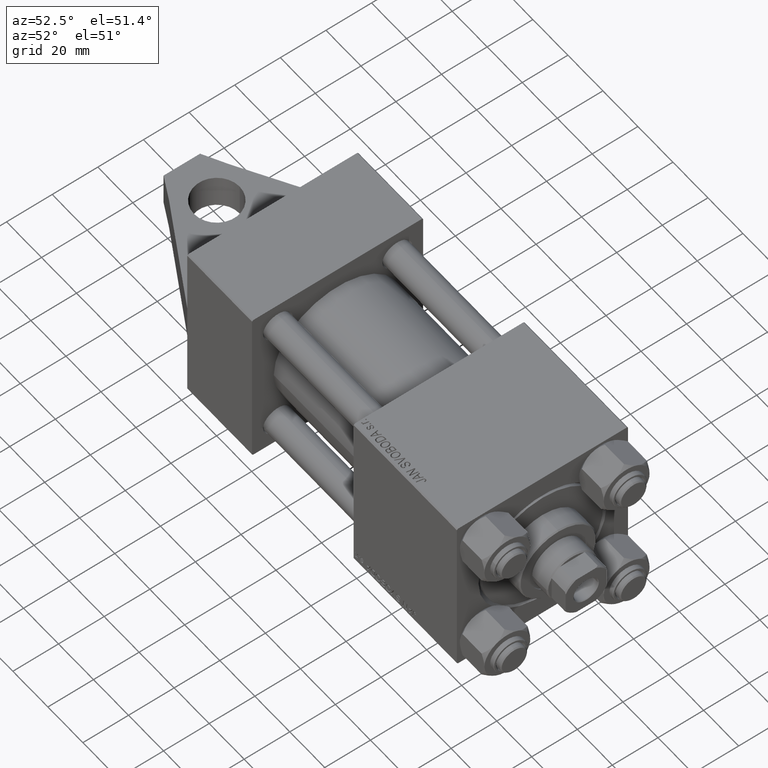
[diagram: clean part render]
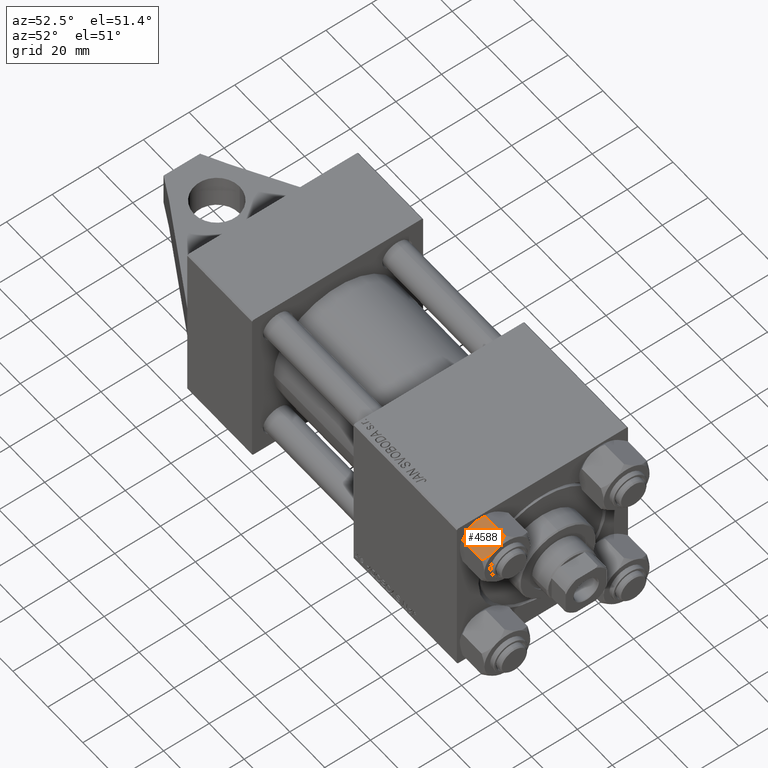
[diagram: same view with one face highlighted and labeled with its STEP entity id]
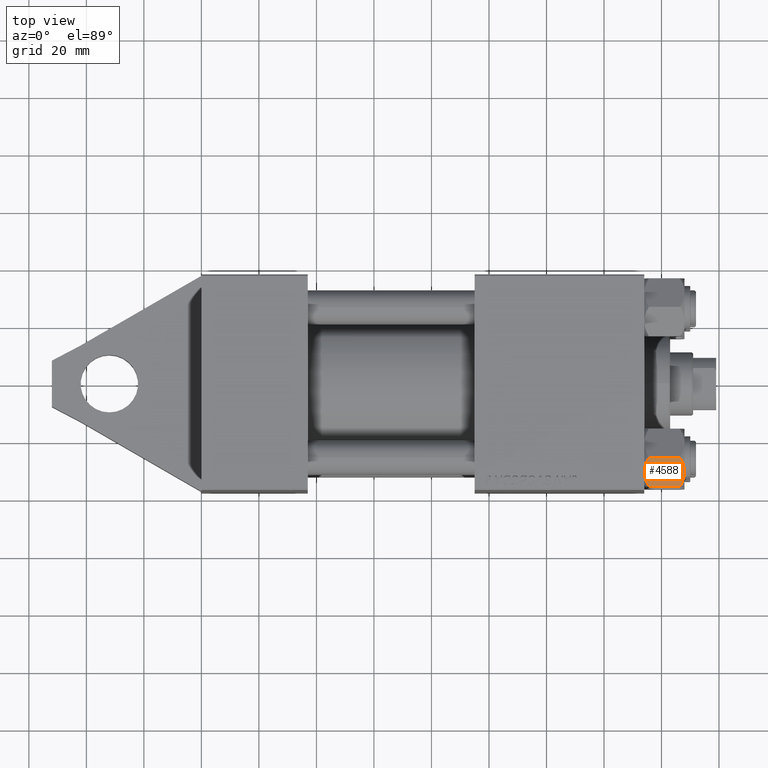
[diagram: same view with one face highlighted and labeled with its STEP entity id]
A machine part, auxiliary view. The second image highlights one B-rep face of the part: STEP entity #4588.
A second angle (top view) of the same face is appended — the face is thin or edge-on in the first view.
In plain terms, the highlighted planar face has unit normal (-0, 0.5, -0.866).
Its self-contained STEP definition (entity closure, byte-faithful):
#203 = CARTESIAN_POINT ( 'NONE',  ( 8.715000000000001634, -5.031607595987590997, 0.000000000000000000 ) ) ;
#1006 = CARTESIAN_POINT ( 'NONE',  ( 8.715000000000001634, -5.031607595987590997, -14.00000000000000000 ) ) ;
#1675 = CARTESIAN_POINT ( 'NONE',  ( 8.715000000000001634, -5.031607595987590997, 0.000000000000000000 ) ) ;
#3972 = CARTESIAN_POINT ( 'NONE',  ( 6.265018354709775750, -9.275100283241444643, -12.89823354668504507 ) ) ;
#4208 = PLANE ( 'NONE',  #35577 ) ;
#4588 = ADVANCED_FACE ( 'NONE', ( #36099 ), #4208, .F. ) ;
#5509 = CARTESIAN_POINT ( 'NONE',  ( 5.810000000000000497, -10.06321519197517667, -14.00000000000000000 ) ) ;
#5934 = CARTESIAN_POINT ( 'NONE',  ( 11.62000000000000099, -1.795242522838921761E-15, -12.44321519197518455 ) ) ;
#6708 = CARTESIAN_POINT ( 'NONE',  ( 11.62000000000000099, -1.607967606633101042E-15, -1.556784808024815669 ) ) ;
#7056 = CARTESIAN_POINT ( 'NONE',  ( 11.62000000000000099, -1.795242522838921761E-15, -12.44321519197518455 ) ) ;
#7430 = EDGE_LOOP ( 'NONE', ( #39012, #27068, #43338, #14147, #13973, #42545 ) ) ;
#8432 = EDGE_CURVE ( 'NONE', #11494, #15379, #27093, .T. ) ;
#9228 = LINE ( 'NONE', #5509, #18909 ) ;
#9671 = VERTEX_POINT ( 'NONE', #31056 ) ;
#11494 = VERTEX_POINT ( 'NONE', #1006 ) ;
#13283 = CARTESIAN_POINT ( 'NONE',  ( 5.810000000000000497, -10.06321519197517667, -1.556784808024813671 ) ) ;
#13816 = CARTESIAN_POINT ( 'NONE',  ( 11.16445427487471775, -0.7890283410877989567, -12.89876091710046424 ) ) ;
#13973 = ORIENTED_EDGE ( 'NONE', *, *, #30721, .F. ) ;
#14147 = ORIENTED_EDGE ( 'NONE', *, *, #40168, .F. ) ;
#14901 = CARTESIAN_POINT ( 'NONE',  ( 8.715000000000001634, -5.031607595987590997, -14.00000000000000000 ) ) ;
#15375 = DIRECTION ( 'NONE',  ( -0.8660254037844385966, 0.5000000000000002220, 0.000000000000000000 ) ) ;
#15379 = VERTEX_POINT ( 'NONE', #35570 ) ;
#15465 = EDGE_CURVE ( 'NONE', #43573, #9671, #45608, .T. ) ;
#18909 = VECTOR ( 'NONE', #23423, 1000.000000000000000 ) ;
#21141 = CARTESIAN_POINT ( 'NONE',  ( 9.220295946303432189, -4.156409344131454020, 1.753358200816401307E-15 ) ) ;
#23089 = CARTESIAN_POINT ( 'NONE',  ( 7.700834831386345058, -6.788193195293096949, -0.1903979688073415555 ) ) ;
#23423 = DIRECTION ( 'NONE',  ( -0.000000000000000000, -0.000000000000000000, 1.000000000000000000 ) ) ;
#24302 = CARTESIAN_POINT ( 'NONE',  ( 8.969430103550385169, -4.590921729663315354, -14.00000000000000533 ) ) ;
#24928 = CARTESIAN_POINT ( 'NONE',  ( 6.733375043383497349, -8.463882702393844326, -13.28854452935655139 ) ) ;
#25617 = CARTESIAN_POINT ( 'NONE',  ( 5.810000000000000497, -10.06321519197517667, -12.44321519197518633 ) ) ;
#25703 = VERTEX_POINT ( 'NONE', #7056 ) ;
#25891 = CARTESIAN_POINT ( 'NONE',  ( 6.265545725125283738, -9.274186850887380373, -1.101239082899531319 ) ) ;
#26125 = CARTESIAN_POINT ( 'NONE',  ( 8.202333004087901003, -5.919572880271055659, -0.03994118060690762112 ) ) ;
#26860 = CARTESIAN_POINT ( 'NONE',  ( 11.62000000000000099, -1.813166800014576593E-15, -14.00000000000000000 ) ) ;
#27068 = ORIENTED_EDGE ( 'NONE', *, *, #31129, .T. ) ;
#27093 = B_SPLINE_CURVE_WITH_KNOTS ( 'NONE', 3,
 ( #14901, #35863, #29110, #24928, #3972, #25617 ),
 .UNSPECIFIED., .F., .F.,
 ( 4, 2, 4 ),
 ( 0.006022845781655588975, 0.009013049135303635023, 0.01200325248895167674 ),
 .UNSPECIFIED. ) ;
#27113 = CARTESIAN_POINT ( 'NONE',  ( 8.715000000000001634, -5.031607595987590997, -14.00000000000000000 ) ) ;
#27568 = CARTESIAN_POINT ( 'NONE',  ( 9.974696630283194310, -2.849749030213795997, -13.69973261901326289 ) ) ;
#28014 = CARTESIAN_POINT ( 'NONE',  ( 9.729165168613654657, -3.275021996682085490, -13.80960203119266083 ) ) ;
#29110 = CARTESIAN_POINT ( 'NONE',  ( 7.713000053756304375, -6.767122412062953174, -13.84547602999601601 ) ) ;
#29580 = DIRECTION ( 'NONE',  ( -0.5000000000000001110, -0.8660254037844384856, 0.000000000000000000 ) ) ;
#30721 = EDGE_CURVE ( 'NONE', #15379, #40252, #9228, .T. ) ;
#31056 = CARTESIAN_POINT ( 'NONE',  ( 11.62000000000000099, -1.607967606633101042E-15, -1.556784808024815669 ) ) ;
#31129 = EDGE_CURVE ( 'NONE', #25703, #9671, #41066, .T. ) ;
#32072 = B_SPLINE_CURVE_WITH_KNOTS ( 'NONE', 3,
 ( #43815, #25891, #33563, #33095, #23089, #26125, #36816, #1675 ),
 .UNSPECIFIED., .F., .F.,
 ( 4, 2, 2, 4 ),
 ( 2.544312114902182352E-07, 0.003011550106433538189, 0.004517197944044561847, 0.006022845781655586372 ),
 .UNSPECIFIED. ) ;
#33068 = CARTESIAN_POINT ( 'NONE',  ( 11.62000000000000099, -1.813166800014576593E-15, -14.00000000000000000 ) ) ;
#33095 = CARTESIAN_POINT ( 'NONE',  ( 7.455303369716810735, -7.213466161761385109, -0.3002673809867383303 ) ) ;
#33563 = CARTESIAN_POINT ( 'NONE',  ( 6.731401448974986934, -8.467301068182914392, -0.7141438259524658383 ) ) ;
#33957 = CARTESIAN_POINT ( 'NONE',  ( 8.715000000000001634, -5.031607595987590997, 0.000000000000000000 ) ) ;
#34616 = VECTOR ( 'NONE', #34743, 1000.000000000000000 ) ;
#34743 = DIRECTION ( 'NONE',  ( -0.000000000000000000, -0.000000000000000000, 1.000000000000000000 ) ) ;
#34998 = CARTESIAN_POINT ( 'NONE',  ( 9.227666995912104042, -4.143642311704127223, -13.96005881939309212 ) ) ;
#35337 = CARTESIAN_POINT ( 'NONE',  ( 10.69662495661650503, -1.599332489581334560, -0.7114554706434500497 ) ) ;
#35570 = CARTESIAN_POINT ( 'NONE',  ( 5.810000000000000497, -10.06321519197517667, -12.44321519197518633 ) ) ;
#35577 = AXIS2_PLACEMENT_3D ( 'NONE', #33068, #15375, #29580 ) ;
#35632 = B_SPLINE_CURVE_WITH_KNOTS ( 'NONE', 3,
 ( #5934, #13816, #45259, #27568, #28014, #34998, #24302, #27113 ),
 .UNSPECIFIED., .F., .F.,
 ( 4, 2, 2, 4 ),
 ( 2.544312114905217906E-07, 0.003011550106433539490, 0.004517197944044564449, 0.006022845781655588975 ),
 .UNSPECIFIED. ) ;
#35863 = CARTESIAN_POINT ( 'NONE',  ( 8.209704053696569304, -5.906805847843729751, -14.00000000000000711 ) ) ;
#36099 = FACE_OUTER_BOUND ( 'NONE', #7430, .T. ) ;
#36816 = CARTESIAN_POINT ( 'NONE',  ( 8.460569896449618099, -5.472293462311865753, 1.694065894508600678E-15 ) ) ;
#38598 = CARTESIAN_POINT ( 'NONE',  ( 11.16498164529022574, -0.7881149087337310233, -1.101766453314954264 ) ) ;
#39012 = ORIENTED_EDGE ( 'NONE', *, *, #45411, .F. ) ;
#40168 = EDGE_CURVE ( 'NONE', #40252, #43573, #32072, .T. ) ;
#40252 = VERTEX_POINT ( 'NONE', #13283 ) ;
#41066 = LINE ( 'NONE', #26860, #34616 ) ;
#42094 = CARTESIAN_POINT ( 'NONE',  ( 9.716999946243698005, -3.296092779912227932, -0.1545239700039841013 ) ) ;
#42545 = ORIENTED_EDGE ( 'NONE', *, *, #8432, .F. ) ;
#43338 = ORIENTED_EDGE ( 'NONE', *, *, #15465, .F. ) ;
#43573 = VERTEX_POINT ( 'NONE', #33957 ) ;
#43815 = CARTESIAN_POINT ( 'NONE',  ( 5.810000000000000497, -10.06321519197517667, -1.556784808024813671 ) ) ;
#45259 = CARTESIAN_POINT ( 'NONE',  ( 10.69859855102500745, -1.595914123792264050, -13.28585617404753094 ) ) ;
#45411 = EDGE_CURVE ( 'NONE', #25703, #11494, #35632, .T. ) ;
#45608 = B_SPLINE_CURVE_WITH_KNOTS ( 'NONE', 3,
 ( #203, #21141, #42094, #35337, #38598, #6708 ),
 .UNSPECIFIED., .F., .F.,
 ( 4, 2, 4 ),
 ( 0.006022845781655586372, 0.009013049135303633289, 0.01200325248895168020 ),
 .UNSPECIFIED. ) ;